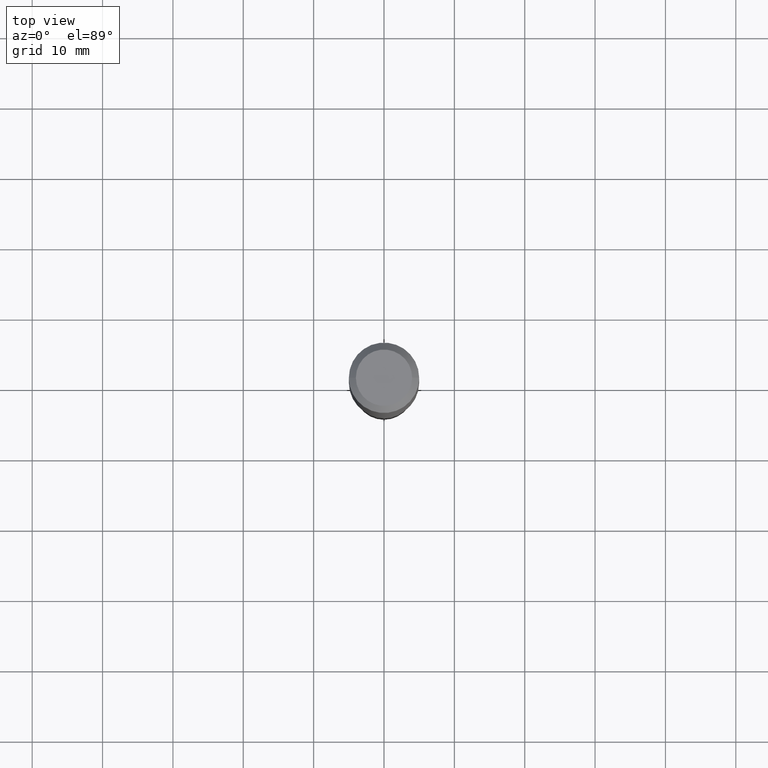
[diagram: clean part render]
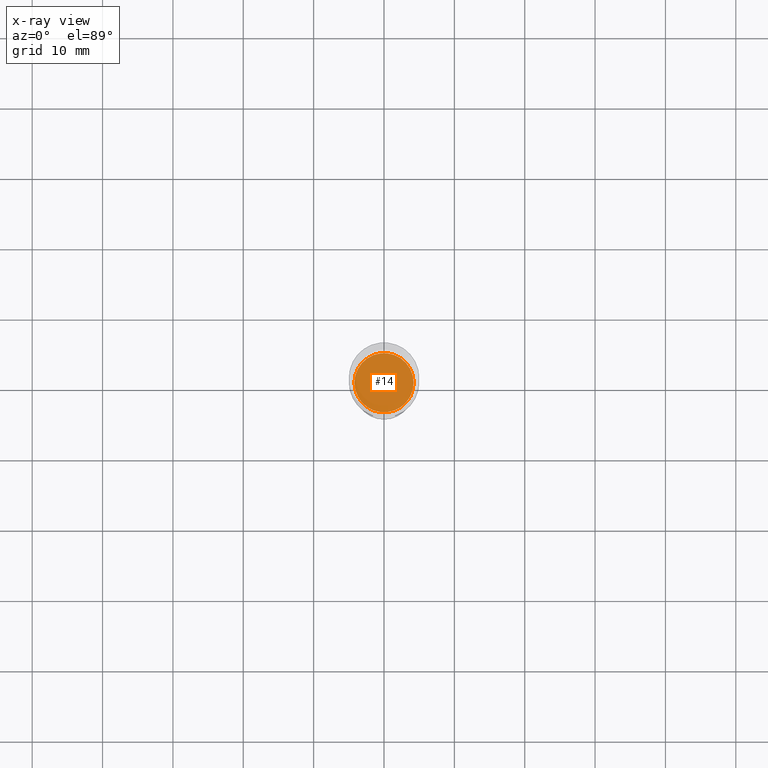
[diagram: x-ray — body ghosted, one internal face saturated and labeled with its STEP entity id]
A machine part, top view, then the same camera in x-ray: the body is ghosted and one INTERNAL B-rep face — a face not visible from any outside direction — is saturated and labeled: STEP entity #14.
In plain terms, the highlighted planar face has unit normal (-0, 0, 1).
Its self-contained STEP definition (entity closure, byte-faithful):
#1 = DIRECTION ( 'NONE',  ( 1.000000000000000000, -6.982962677686265133E-15, 0.000000000000000000 ) ) ;
#3 = AXIS2_PLACEMENT_3D ( 'NONE', #392, #313, #397 ) ;
#14 = ADVANCED_FACE ( 'NONE', ( #183 ), #447, .F. ) ;
#32 = VERTEX_POINT ( 'NONE', #245 ) ;
#48 = CIRCLE ( 'NONE', #322, 0.1655000000000000082 ) ;
#51 = VERTEX_POINT ( 'NONE', #247 ) ;
#76 = EDGE_CURVE ( 'NONE', #51, #32, #48, .T. ) ;
#106 = ORIENTED_EDGE ( 'NONE', *, *, #326, .F. ) ;
#132 = ORIENTED_EDGE ( 'NONE', *, *, #76, .F. ) ;
#179 = DIRECTION ( 'NONE',  ( 1.000000000000000000, -6.982962677686265922E-15, 4.876176775795935793E-29 ) ) ;
#183 = FACE_OUTER_BOUND ( 'NONE', #211, .T. ) ;
#211 = EDGE_LOOP ( 'NONE', ( #106, #132 ) ) ;
#245 = CARTESIAN_POINT ( 'NONE',  ( 0.1655000000000000082, -6.928495568800333154E-15, -1.653399999999999981 ) ) ;
#247 = CARTESIAN_POINT ( 'NONE',  ( -0.1655000000000000082, -4.594217790786179112E-15, -1.653399999999999981 ) ) ;
#313 = DIRECTION ( 'NONE',  ( -2.445468806185136597E-29, 3.491481338843145583E-15, 1.000000000000000000 ) ) ;
#322 = AXIS2_PLACEMENT_3D ( 'NONE', #387, #346, #1 ) ;
#323 = CARTESIAN_POINT ( 'NONE',  ( 2.137543109451043709E-29, -8.502022177803070157E-15, -1.653399999999999981 ) ) ;
#326 = EDGE_CURVE ( 'NONE', #32, #51, #358, .T. ) ;
#346 = DIRECTION ( 'NONE',  ( -2.445468806185136597E-29, 3.491481338843145583E-15, 1.000000000000000000 ) ) ;
#358 = CIRCLE ( 'NONE', #3, 0.1655000000000000082 ) ;
#387 = CARTESIAN_POINT ( 'NONE',  ( 4.043338124146504977E-29, -5.772815245643255982E-15, -1.653399999999999981 ) ) ;
#392 = CARTESIAN_POINT ( 'NONE',  ( 4.043338124146504977E-29, -5.772815245643255982E-15, -1.653399999999999981 ) ) ;
#397 = DIRECTION ( 'NONE',  ( 1.000000000000000000, -6.982962677686265133E-15, 0.000000000000000000 ) ) ;
#447 = PLANE ( 'NONE',  #477 ) ;
#477 = AXIS2_PLACEMENT_3D ( 'NONE', #323, #488, #179 ) ;
#488 = DIRECTION ( 'NONE',  ( -2.438088387897960049E-29, 3.491481338843145188E-15, 1.000000000000000000 ) ) ;